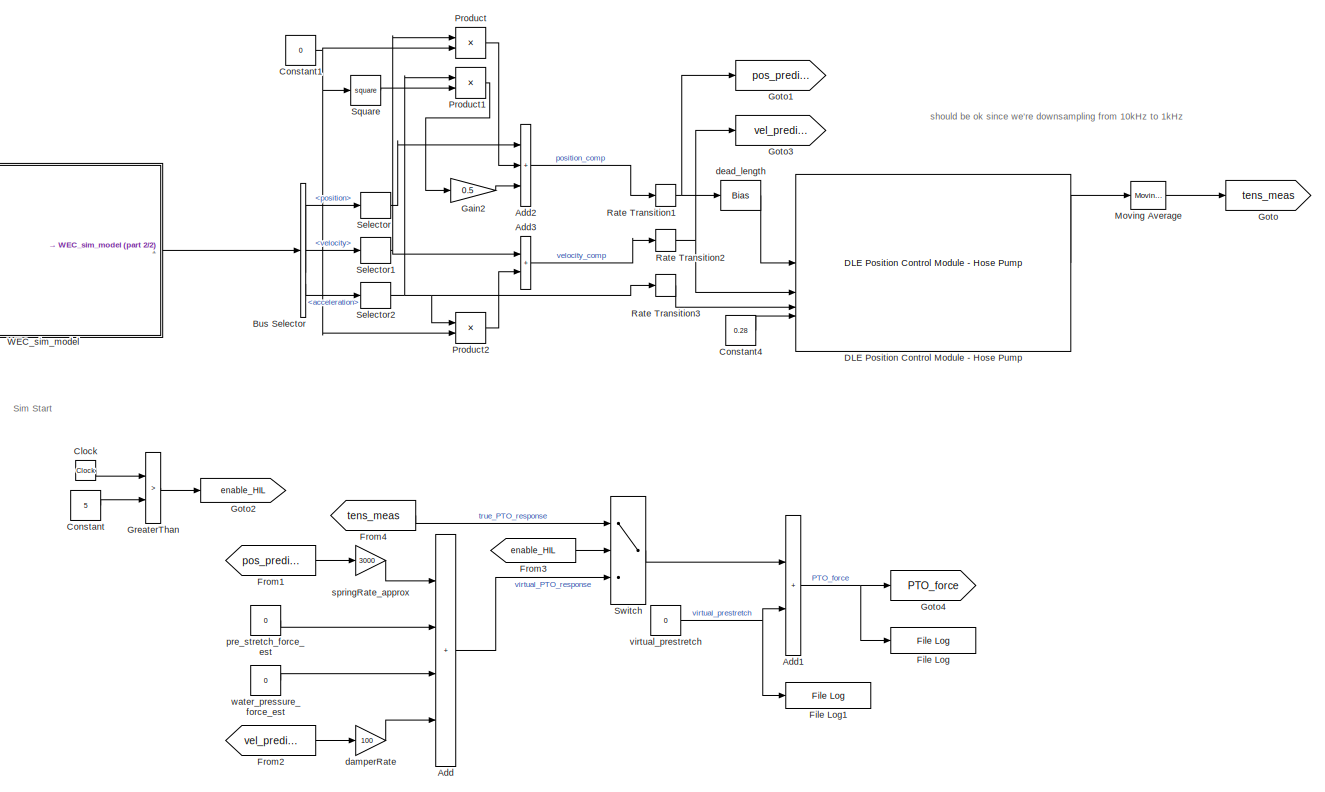
[diagram: root canvas - part 1/2, most of the canvas]
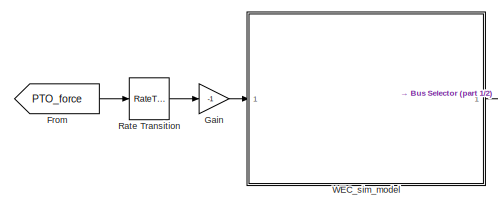
[diagram: root canvas - part 2/2, middle left region]
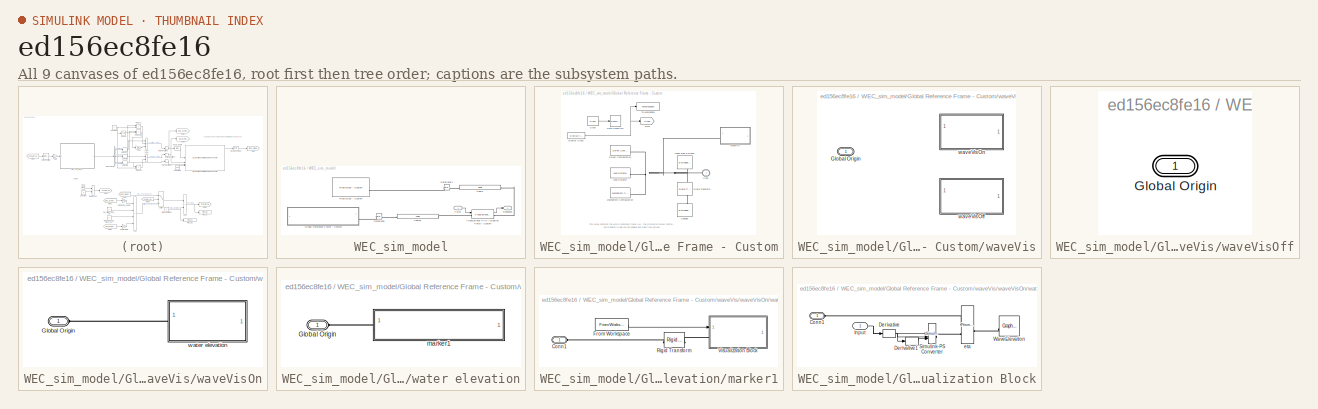
[diagram: thumbnail index - all 9 canvases of the model, root first then tree order]
MODEL slx_ed156ec8fe16
KIND model
CONFIG AbsTol = auto
CONFIG EnableMultiTasking = off
CONFIG FixedStep = 0.01
CONFIG MaxStep = 0.01
CONFIG MinStep = auto
CONFIG RelTol = 1e-3
CONFIG SampleTimeConstraint = Unconstrained
CONFIG SolverName = ode23t
CONFIG StartTime = 0
CONFIG StopTime = 200
BLOCK [Sum] Add
  IconShape = rectangular
  Inputs = ++++
BLOCK [Sum] Add1
  IconShape = rectangular
BLOCK [Sum] Add2
  IconShape = rectangular
  Inputs = +++
BLOCK [Sum] Add3
  IconShape = rectangular
BLOCK [BusSelector] Bus Selector
  OutputSignals = position,velocity,acceleration
BLOCK [Clock] Clock
BLOCK [Constant] Constant
  Value = 5
BLOCK [Constant] Constant1
  Value = 0
BLOCK [Constant] Constant4
  Value = 0.28
BLOCK [Reference] DLE Position Control Module - Hose Pump  REF=SG_DLE_position_control_module_hose_pump/DLE Position Control Module - Hose Pump
  SourceBlock = SG_DLE_position_control_module_hose_pump/DLE Position Control Module - Hose Pump
  SourceType = SubSystem
BLOCK [Reference] File Log  REF=slrealtimeloglib/File Log
  SourceBlock = slrealtimeloglib/File Log
  SourceType = slrealtimeloggingblock
BLOCK [Reference] File Log1  REF=slrealtimeloglib/File Log
  SourceBlock = slrealtimeloglib/File Log
  SourceType = slrealtimeloggingblock
BLOCK [From] From
  GotoTag = PTO_force
BLOCK [From] From1
  GotoTag = pos_prediction
BLOCK [From] From2
  GotoTag = vel_prediction
BLOCK [From] From3
  GotoTag = enable_HIL
BLOCK [From] From4
  GotoTag = tens_meas
BLOCK [Gain] Gain
  Gain = -1
BLOCK [Gain] Gain2
  Gain = 0.5
BLOCK [Goto] Goto
  GotoTag = tens_meas
BLOCK [Goto] Goto1
  GotoTag = pos_prediction
BLOCK [Goto] Goto2
  GotoTag = enable_HIL
BLOCK [Goto] Goto3
  GotoTag = vel_prediction
BLOCK [Goto] Goto4
  GotoTag = PTO_force
BLOCK [RelationalOperator] GreaterThan
  InputSameDT = off
  Operator = >
  OutDataTypeStr = boolean
  RndMeth = Simplest
BLOCK [Reference] Moving Average  REF=dspstat3/Moving
Average
  SourceBlock = dspstat3/Moving\nAverage
  SourceType = dsp.simulink.MovingAverage
BLOCK [Product] Product
BLOCK [Product] Product1
BLOCK [Product] Product2
BLOCK [RateTransition] Rate Transition
  OutPortSampleTime = wecSimModelRate
BLOCK [RateTransition] Rate Transition1
  OutPortSampleTime = simu.dt
BLOCK [RateTransition] Rate Transition2
  OutPortSampleTime = simu.dt
BLOCK [RateTransition] Rate Transition3
  OutPortSampleTime = simu.dt
BLOCK [Selector] Selector
  IndexOptions = Index vector (dialog)
  Indices = 3
  InputPortWidth = 6
  OutputSizes = 1
BLOCK [Selector] Selector1
  IndexOptions = Index vector (dialog)
  Indices = 3
  InputPortWidth = 6
  OutputSizes = 1
BLOCK [Selector] Selector2
  IndexOptions = Index vector (dialog)
  Indices = 3
  InputPortWidth = 6
  OutputSizes = 1
BLOCK [Math] Square
  Operator = square
BLOCK [Switch] Switch
  Criteria = u2 > Threshold
  InputSameDT = off
  SaturateOnIntegerOverflow = off
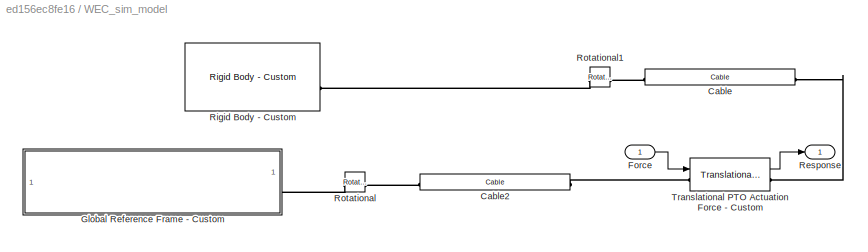
BLOCK [SubSystem] WEC_sim_model
  SystemSampleTime = wecSimModelRate
  TreatAsAtomicUnit = on
BLOCK [Reference] WEC_sim_model/Cable  REF=WECSim_Lib_Cables/Cable
  AttributesFormatString = %<cable>
  Commented = through
  SourceBlock = WECSim_Lib_Cables/Cable
  SourceType = Cables
BLOCK [Reference] WEC_sim_model/Cable2  REF=WECSim_Lib_Cables/Cable
  AttributesFormatString = %<cable>
  Commented = through
  SourceBlock = WECSim_Lib_Cables/Cable
  SourceType = Cables
BLOCK [Inport] WEC_sim_model/Force
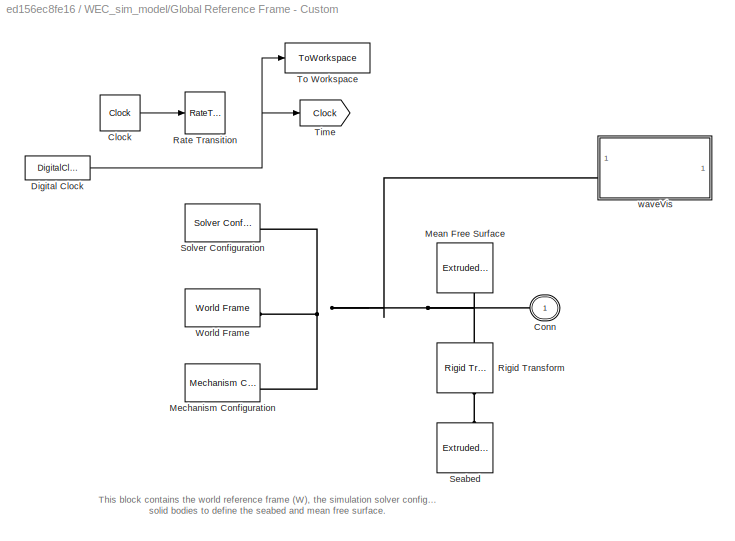
BLOCK [SubSystem] WEC_sim_model/Global Reference Frame - Custom
BLOCK [Clock] WEC_sim_model/Global Reference Frame - Custom/Clock
  Commented = on
BLOCK [PMIOPort] WEC_sim_model/Global Reference Frame - Custom/Conn
  Side = Right
BLOCK [DigitalClock] WEC_sim_model/Global Reference Frame - Custom/Digital Clock
  SampleTime = wecSimModelRate
BLOCK [Reference] WEC_sim_model/Global Reference Frame - Custom/Mean Free Surface  REF=sm_lib/Body Elements/Extruded Solid
  NameLocation = right
  SourceBlock = sm_lib/Body Elements/Extruded Solid
  SourceType = Extruded Solid
BLOCK [Reference] WEC_sim_model/Global Reference Frame - Custom/Mechanism Configuration  REF=sm_lib/Utilities/Mechanism
Configuration
  SourceBlock = sm_lib/Utilities/Mechanism\nConfiguration
  SourceType = Mechanism\nConfiguration
BLOCK [RateTransition] WEC_sim_model/Global Reference Frame - Custom/Rate Transition
  Commented = on
  OutPortSampleTime = wecSimModelRate
BLOCK [Reference] WEC_sim_model/Global Reference Frame - Custom/Rigid Transform  REF=sm_lib/Frames and
Transforms/Rigid
Transform
  NameLocation = right
  SourceBlock = sm_lib/Frames and\nTransforms/Rigid\nTransform
  SourceType = Rigid\nTransform
BLOCK [Reference] WEC_sim_model/Global Reference Frame - Custom/Seabed  REF=sm_lib/Body Elements/Extruded Solid
  NameLocation = right
  SourceBlock = sm_lib/Body Elements/Extruded Solid
  SourceType = Extruded Solid
BLOCK [Reference] WEC_sim_model/Global Reference Frame - Custom/Solver Configuration  REF=nesl_utility/Solver
Configuration
  SourceBlock = nesl_utility/Solver\nConfiguration
  SourceType = Solver\nConfiguration
BLOCK [Goto] WEC_sim_model/Global Reference Frame - Custom/Time
  GotoTag = Clock
  TagVisibility = global
BLOCK [ToWorkspace] WEC_sim_model/Global Reference Frame - Custom/To Workspace
  MaxDataPoints = inf
  SampleTime = -1
  SaveFormat = Structure With Time
  VariableName = clock_out
BLOCK [Reference] WEC_sim_model/Global Reference Frame - Custom/World Frame  REF=sm_lib/Frames and
Transforms/World Frame
  SourceBlock = sm_lib/Frames and\nTransforms/World Frame
  SourceType = World Frame
BLOCK [SubSystem] WEC_sim_model/Global Reference Frame - Custom/waveVis
  EmptyChoice = on
  PropagateVariantConditions = on
  Variant = on
  VariantControl = Choice
BLOCK [PMIOPort] WEC_sim_model/Global Reference Frame - Custom/waveVis/Global Origin
  Side = Left
BLOCK [SubSystem] WEC_sim_model/Global Reference Frame - Custom/waveVis/waveVisOff
  VariantControl = sv_visualizationOFF
BLOCK [PMIOPort] WEC_sim_model/Global Reference Frame - Custom/waveVis/waveVisOff/Global Origin
  Side = Left
BLOCK [SubSystem] WEC_sim_model/Global Reference Frame - Custom/waveVis/waveVisOn
  VariantControl = sv_visualizationON
BLOCK [PMIOPort] WEC_sim_model/Global Reference Frame - Custom/waveVis/waveVisOn/Global Origin
  Side = Left
BLOCK [SubSystem] WEC_sim_model/Global Reference Frame - Custom/waveVis/waveVisOn/water elevation
BLOCK [PMIOPort] WEC_sim_model/Global Reference Frame - Custom/waveVis/waveVisOn/water elevation/Global Origin
  Side = Left
BLOCK [SubSystem] WEC_sim_model/Global Reference Frame - Custom/waveVis/waveVisOn/water elevation/marker1
BLOCK [PMIOPort] WEC_sim_model/Global Reference Frame - Custom/waveVis/waveVisOn/water elevation/marker1/Conn1
  Side = Left
BLOCK [FromWorkspace] WEC_sim_model/Global Reference Frame - Custom/waveVis/waveVisOn/water elevation/marker1/From Workspace
  VariableName = wgT
BLOCK [Reference] WEC_sim_model/Global Reference Frame - Custom/waveVis/waveVisOn/water elevation/marker1/Rigid Transform  REF=sm_lib/Frames and
Transforms/Rigid
Transform
  SourceBlock = sm_lib/Frames and\nTransforms/Rigid\nTransform
  SourceType = Rigid\nTransform
BLOCK [SubSystem] WEC_sim_model/Global Reference Frame - Custom/waveVis/waveVisOn/water elevation/marker1/Visualization Block
BLOCK [PMIOPort] WEC_sim_model/Global Reference Frame - Custom/waveVis/waveVisOn/water elevation/marker1/Visualization Block/Conn1
  Side = Left
BLOCK [Derivative] WEC_sim_model/Global Reference Frame - Custom/waveVis/waveVisOn/water elevation/marker1/Visualization Block/Derivative
BLOCK [Derivative] WEC_sim_model/Global Reference Frame - Custom/waveVis/waveVisOn/water elevation/marker1/Visualization Block/Derivative1
BLOCK [Inport] WEC_sim_model/Global Reference Frame - Custom/waveVis/waveVisOn/water elevation/marker1/Visualization Block/Input
BLOCK [Reference] WEC_sim_model/Global Reference Frame - Custom/waveVis/waveVisOn/water elevation/marker1/Visualization Block/Simulink-PS Converter  REF=nesl_utility/Simulink-PS
Converter
  SourceBlock = nesl_utility/Simulink-PS\nConverter
  SourceType = Simulink-PS\nConverter
BLOCK [Reference] WEC_sim_model/Global Reference Frame - Custom/waveVis/waveVisOn/water elevation/marker1/Visualization Block/WaveElevation  REF=sm_lib/Body Elements/Graphic
  AttributesFormatString = Marker Shape: %<MarkerShape>\nMarker Size:    %<MarkerSize>%<MarkerSizeUnits>
  NameLocation = top
  SourceBlock = sm_lib/Body Elements/Graphic
  SourceType = Graphic
BLOCK [Reference] WEC_sim_model/Global Reference Frame - Custom/waveVis/waveVisOn/water elevation/marker1/Visualization Block/eta  REF=sm_lib/Joints/Prismatic
Joint
  SourceBlock = sm_lib/Joints/Prismatic\nJoint
  SourceType = Prismatic\nJoint
BLOCK [Outport] WEC_sim_model/Response
BLOCK [Reference] WEC_sim_model/Rigid Body - Custom  REF=custom_WECSim_Lib_Body_Elements_612/Rigid Body - Custom
  AttributesFormatString = %<body>
  SourceBlock = custom_WECSim_Lib_Body_Elements_612/Rigid Body - Custom
  SourceType = Rigid Body
BLOCK [Reference] WEC_sim_model/Rotational  REF=WECSim_Lib_Constraints/Rotational
  AttributesFormatString = %<constraint>
  SourceBlock = WECSim_Lib_Constraints/Rotational
  SourceType = Constraints
BLOCK [Reference] WEC_sim_model/Rotational1  REF=WECSim_Lib_Constraints/Rotational
  AttributesFormatString = %<constraint>
  SourceBlock = WECSim_Lib_Constraints/Rotational
  SourceType = Constraints
BLOCK [Reference] WEC_sim_model/Translational PTO Actuation Force - Custom  REF=custom_WECSim_Lib_Body_Elements_612/Translational PTO
Actuation Force - Custom
  AttributesFormatString = %<pto>
  SourceBlock = custom_WECSim_Lib_Body_Elements_612/Translational PTO\nActuation Force - Custom
  SourceType = PTO
BLOCK [Gain] damperRate
  Gain = 100
BLOCK [Bias] dead_length
  Bias = 0.135
  SaturateOnIntegerOverflow = off
BLOCK [Constant] pre_stretch_force_est
  Value = 0
BLOCK [Gain] springRate_approx
  Gain = 3000
BLOCK [Constant] virtual_prestretch
  Value = 0
BLOCK [Constant] water_pressure_force_est
  Value = 0
ANNOTATION (root): Sim Start
ANNOTATION (root): should be ok since we're downsampling from 10kHz to 1kHz
ANNOTATION WEC_sim_model/Global Reference Frame - Custom: This block contains the world reference frame (W), the simulation solver configuration and solid bodies to define the seabed and mean free surface.
NET Add1:1 -> File Log:1, Goto4:1
LINE Add2:1 -> Rate Transition1:1
LINE Add3:1 -> Rate Transition2:1
LINE Add:1 -> Switch:3
LINE Bus Selector:1 -> Selector:1
LINE Bus Selector:2 -> Selector1:1
LINE Bus Selector:3 -> Selector2:1
LINE Clock:1 -> GreaterThan:1
NET Constant1:1 -> Product2:2, Product:2, Square:1
LINE Constant4:1 -> DLE Position Control Module - Hose Pump:4
LINE Constant:1 -> GreaterThan:2
LINE DLE Position Control Module - Hose Pump:1 -> Moving Average:1
LINE From1:1 -> springRate_approx:1
LINE From2:1 -> damperRate:1
LINE From3:1 -> Switch:2
LINE From4:1 -> Switch:1
LINE From:1 -> Rate Transition:1
LINE Gain2:1 -> Add2:3
LINE Gain:1 -> WEC_sim_model:1
LINE GreaterThan:1 -> Goto2:1
LINE Moving Average:1 -> Goto:1
LINE Product1:1 -> Gain2:1
LINE Product2:1 -> Add3:2
LINE Product:1 -> Add2:2
NET Rate Transition1:1 -> Goto1:1, dead_length:1
NET Rate Transition2:1 -> DLE Position Control Module - Hose Pump:2, Goto3:1
LINE Rate Transition3:1 -> DLE Position Control Module - Hose Pump:3
LINE Rate Transition:1 -> Gain:1
NET Selector1:1 -> Add3:1, Product:1
NET Selector2:1 -> Product1:1, Product2:1, Rate Transition3:1
LINE Selector:1 -> Add2:1
LINE Square:1 -> Product1:2
LINE Switch:1 -> Add1:1
LINE WEC_sim_model/Force:1 -> WEC_sim_model/Translational PTO Actuation Force - Custom:1
LINE WEC_sim_model/Translational PTO Actuation Force - Custom:1 -> WEC_sim_model/Response:1
LINE WEC_sim_model:1 -> Bus Selector:1
LINE damperRate:1 -> Add:4
LINE dead_length:1 -> DLE Position Control Module - Hose Pump:1
LINE pre_stretch_force_est:1 -> Add:2
LINE springRate_approx:1 -> Add:1
NET virtual_prestretch:1 -> Add1:2, File Log1:1
LINE water_pressure_force_est:1 -> Add:3
PLINE WEC_sim_model/Cable2:LConn1 -- WEC_sim_model/Rotational:RConn1
PLINE WEC_sim_model/Cable2:RConn1 -- WEC_sim_model/Translational PTO Actuation Force - Custom:LConn1
PLINE WEC_sim_model/Cable:LConn1 -- WEC_sim_model/Translational PTO Actuation Force - Custom:RConn1
PLINE WEC_sim_model/Cable:RConn1 -- WEC_sim_model/Rotational1:LConn1
PLINE WEC_sim_model/Global Reference Frame - Custom:RConn1 -- WEC_sim_model/Rotational:LConn1
PLINE WEC_sim_model/Rigid Body - Custom:RConn1 -- WEC_sim_model/Rotational1:RConn1
note: NET lines group one-source signal fan-out (src -> all destinations, sorted); 1:1 wires keep LINE
